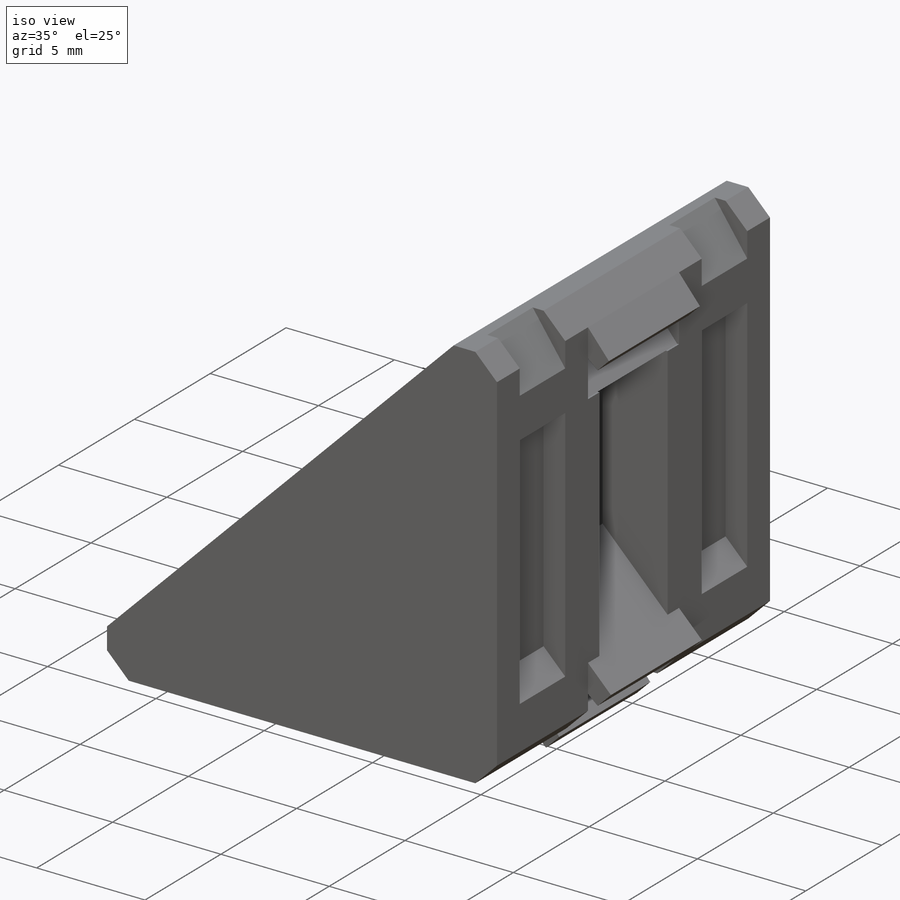
[diagram: iso view]
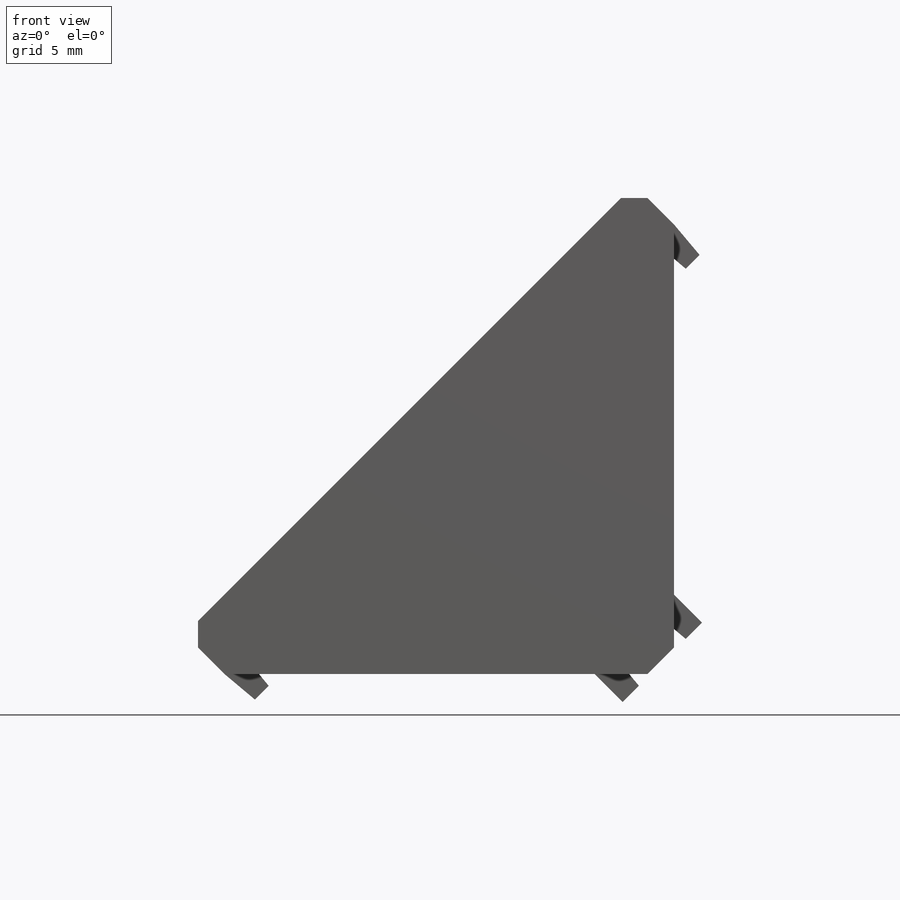
[diagram: front view]
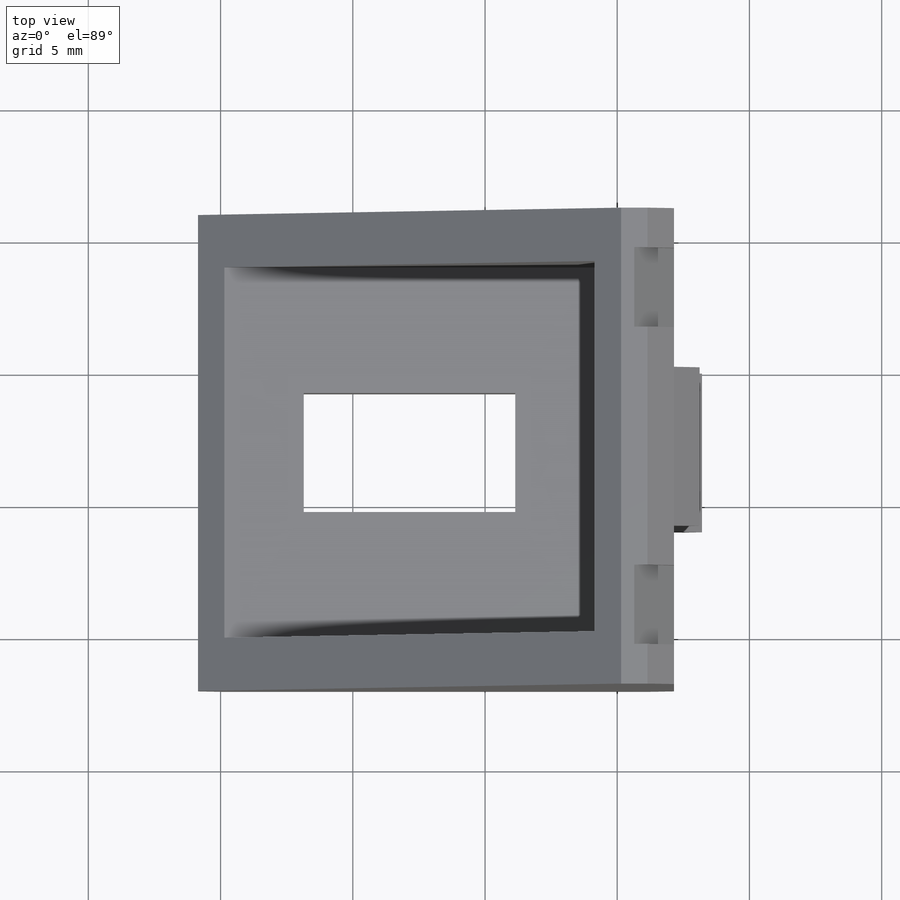
[diagram: top view]
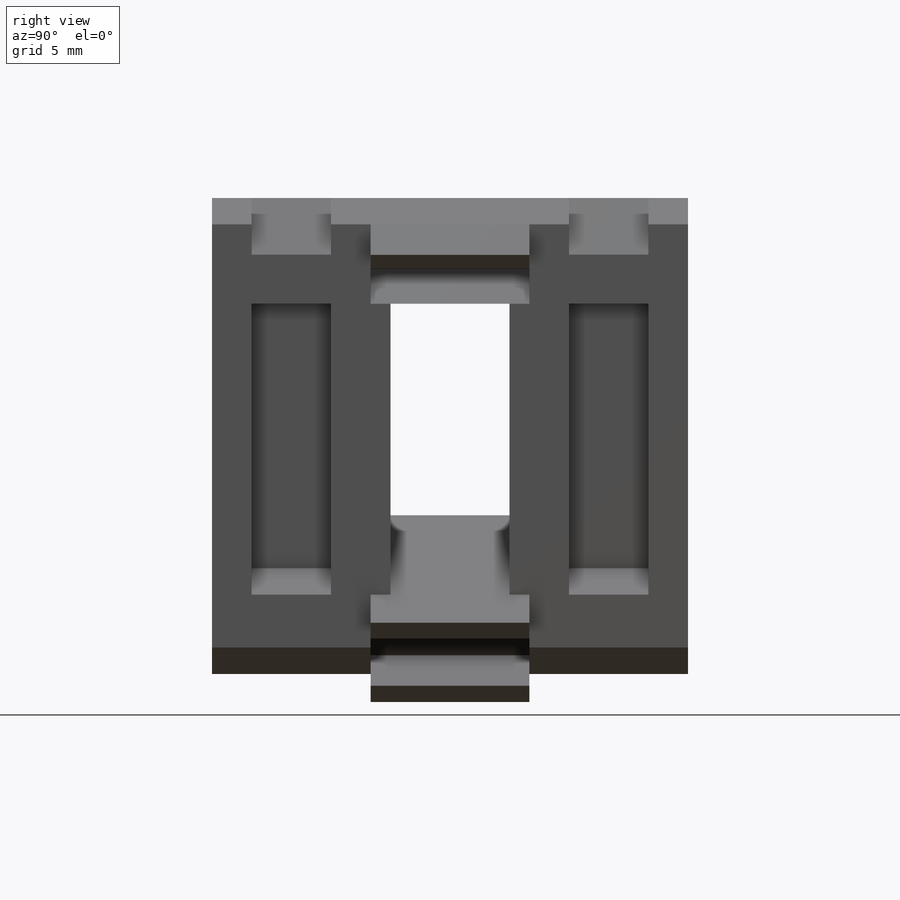
[diagram: right view]
SOLIDWORKS PART (.sldprt)
format: sldprt  version: not decoded by parser v0  size: 638,464 bytes
history: native  units: mm
features: sketch x9, mirror x6, plane x5, extrude x5, cut_extrude x4, material x1, chamfer x1 (+12 scaffold rows collapsed)
feature tree (43):
  scaffold x12  (default folders/planes/origin — collapsed)
  material  "材质 <未指定>"
  plane  "前视基准面"
  plane  "上视基准面"
  plane  "右视基准面"
  sketch  "草图1"  dims[D1=3.0mm]
  extrude  "拉伸1"  Depth=6mm
  sketch  "草图2"  dims[D1=3.0mm]
  extrude  "拉伸2"  Depth=4mm
  plane  "基准面4"
  mirror  "镜向1"
  sketch  "草图3"
  extrude  "拉伸3"  Depth=2mm
  mirror  "镜向2"
  sketch  "草图4"
  extrude  "拉伸4"  Depth=0.75mm
  mirror  "镜向3"
  sketch  "草图5"
  extrude  "拉伸5"  Depth=0.75mm
  mirror  "镜向4"
  plane  "基准面5"  Offset=7.5mm
  sketch  "草图7"  dims[D1=1.0mm D2=10.0mm]
  cut_extrude  "切除-拉伸2"  Depth=3mm
  sketch  "草图8"  dims[D1=4.0mm D2=1.0mm D3=10.0mm]
  cut_extrude  "切除-拉伸3"  Depth=3mm
  mirror  "镜向5"
  sketch  "草图9"  dims[c1.D1=1.5mm c1.D2=2.14mm c1.D3=~2.449712mm c2.D3=~35.027942deg c2.D2=~2.449712mm c3.D2=35.0deg c3.D3=~2.142222mm]
  cut_extrude  "切除-拉伸4"  Depth=3mm
  sketch  "草图10"  dims[c1.D1=1.5mm c1.D2=~3.413976mm c2.D2=55.0deg c2.D3=~2.142222mm]
  cut_extrude  "切除-拉伸5"  Depth=3mm
  mirror  "镜向6"
  chamfer  "倒角1"  Distance=1mm Angle=45deg
decode coverage: 16 of 25 modeling features carry decoded parameters
note: ~ marks probable driven/reference dimensions
note: suppression state not decoded; provenance and decode notes live in map.json
